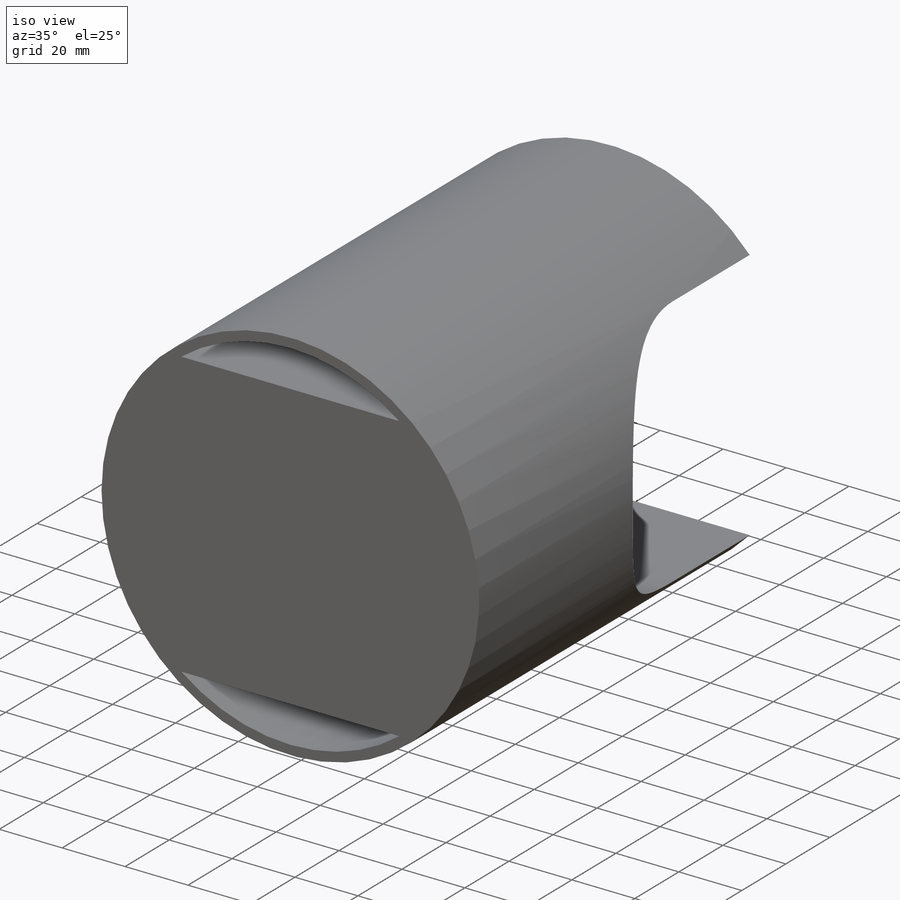
[diagram: iso view]
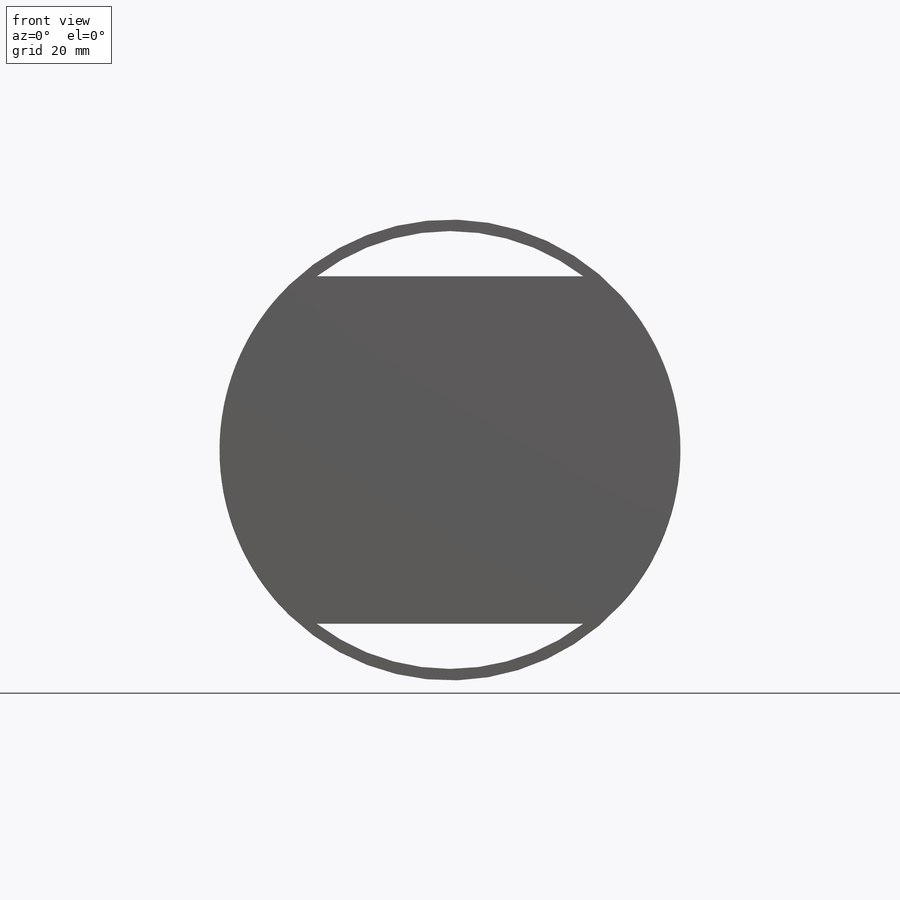
[diagram: front view]
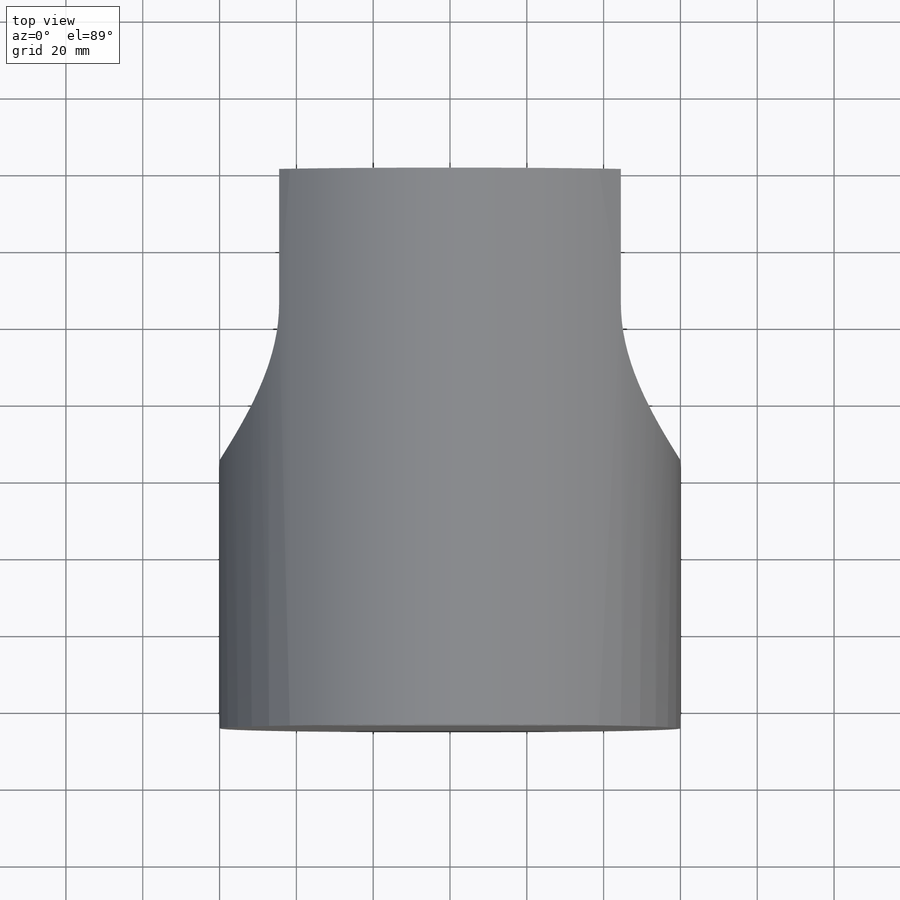
[diagram: top view]
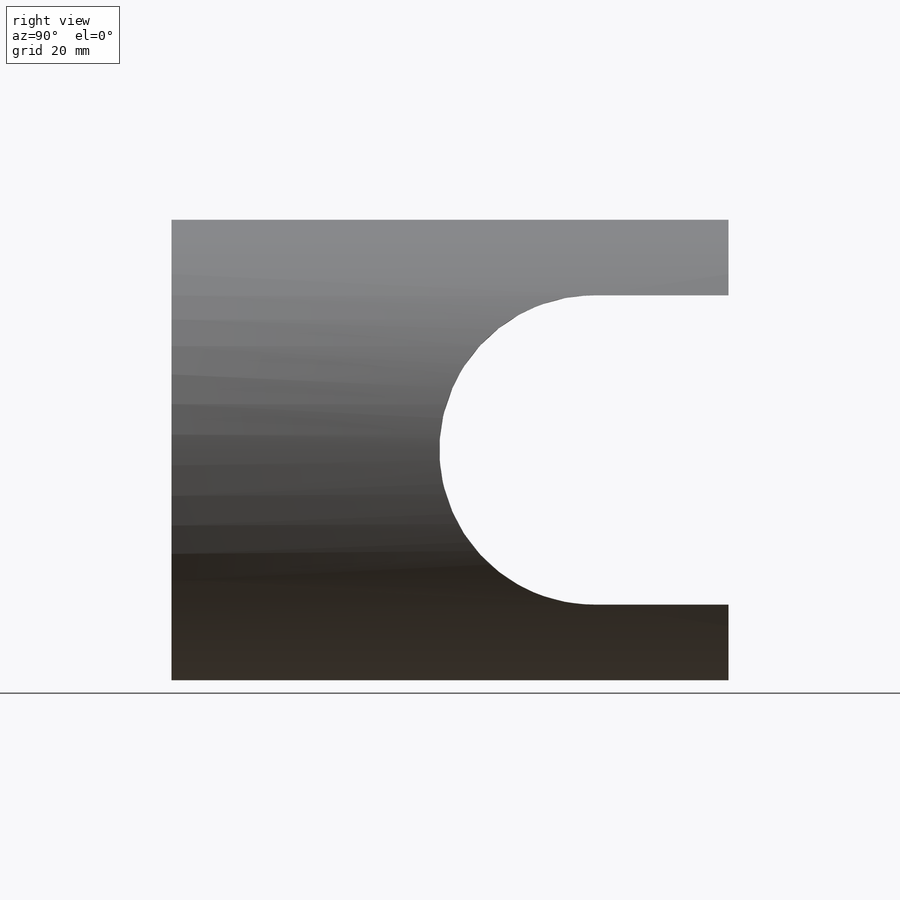
[diagram: right view]
SOLIDWORKS PART (.sldprt)
format: sldprt  version: not decoded by parser v0  size: 204,800 bytes
history: native  units: mm
features: sketch x5, cut_extrude x4, material x1, extrude x1, plane x1 (+12 scaffold rows collapsed)
feature tree (24):
  scaffold x12  (default folders/planes/origin — collapsed)
  material  "Material <not specified>"
  sketch  "Sketch1"  dims[D1=120.0mm]
  extrude  "Boss-Extrude1"  Depth=145mm
  sketch  "Sketch2"  dims[c1.D1=35.0mm c1.D2=80.5mm c1.D3=10.0mm c1.D4=27.0mm c2.D3=40.25mm]
  cut_extrude  "Cut-Extrude1"  [1 undecoded]
  plane  "Plane1"
  sketch  "Sketch4"  dims[D1=80.5mm]
  cut_extrude  "Cut-Extrude2"  [1 undecoded]
  sketch  "Sketch7"  dims[D1=20.0mm D2=15.0mm]
  cut_extrude  "Cut-Extrude5"  Depth=5mm
  sketch  "Sketch9"  dims[D1=~5.808679mm D2=5.0mm]
  cut_extrude  "Cut-Extrude7"  [1 undecoded]
decode coverage: 7 of 10 modeling features carry decoded parameters
note: ~ marks probable driven/reference dimensions
note: 3 parameter values undecoded
summary: no parameter record found for 3 features
note: suppression state not decoded; provenance and decode notes live in map.json
